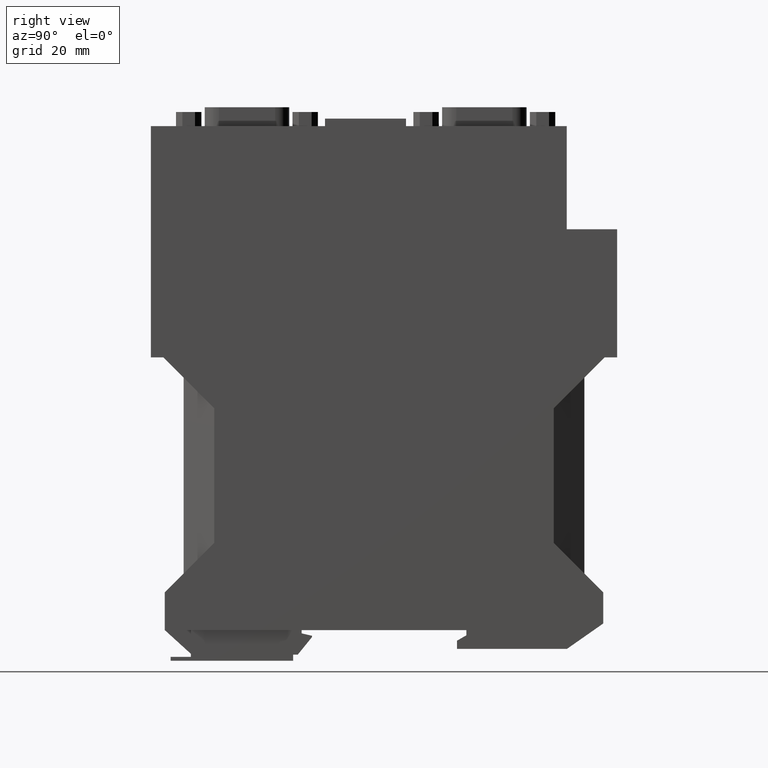
[diagram: clean part render]
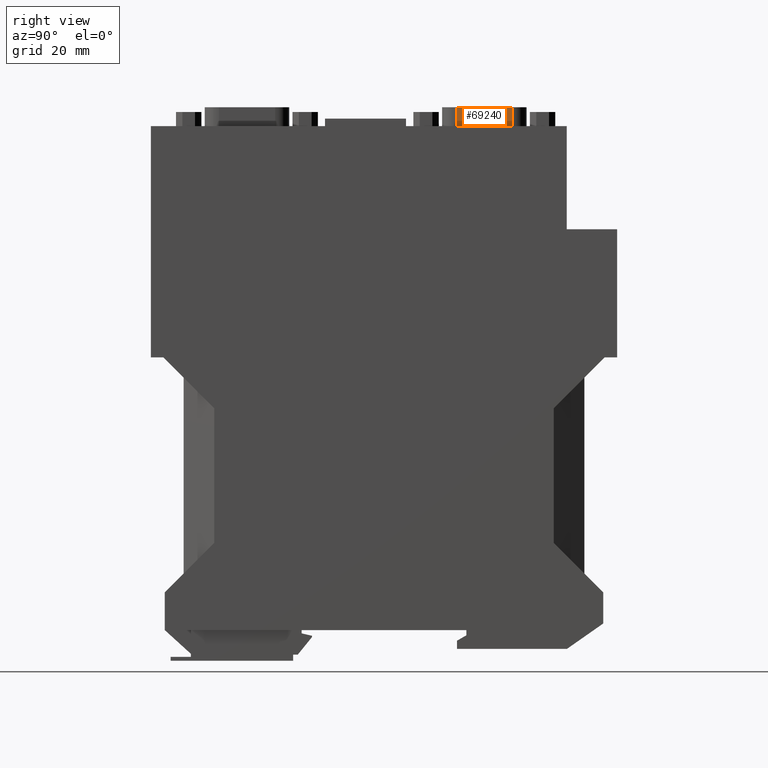
[diagram: same view with one face highlighted and labeled with its STEP entity id]
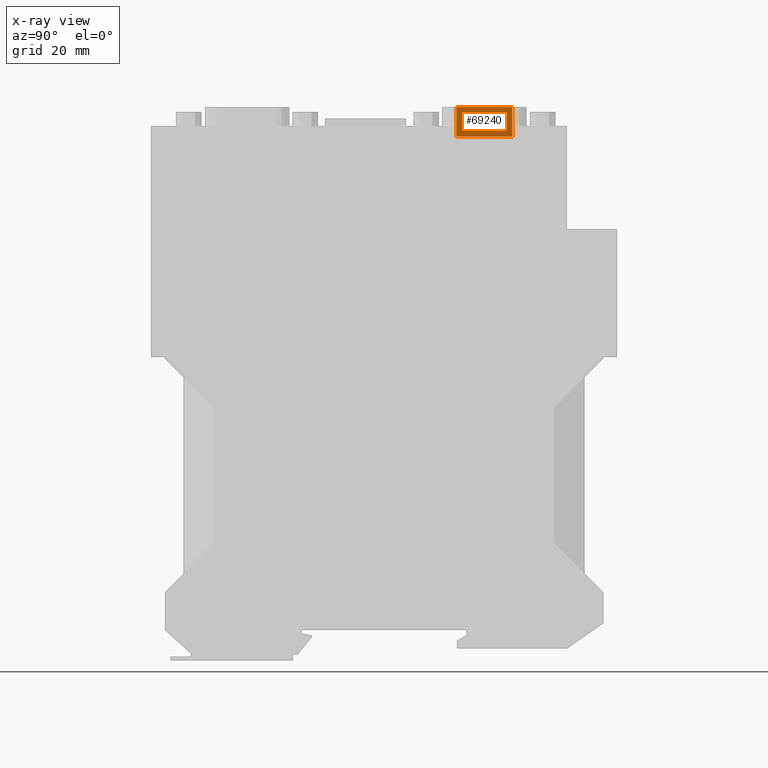
[diagram: x-ray of the same camera — body ghosted, the highlighted face saturated]
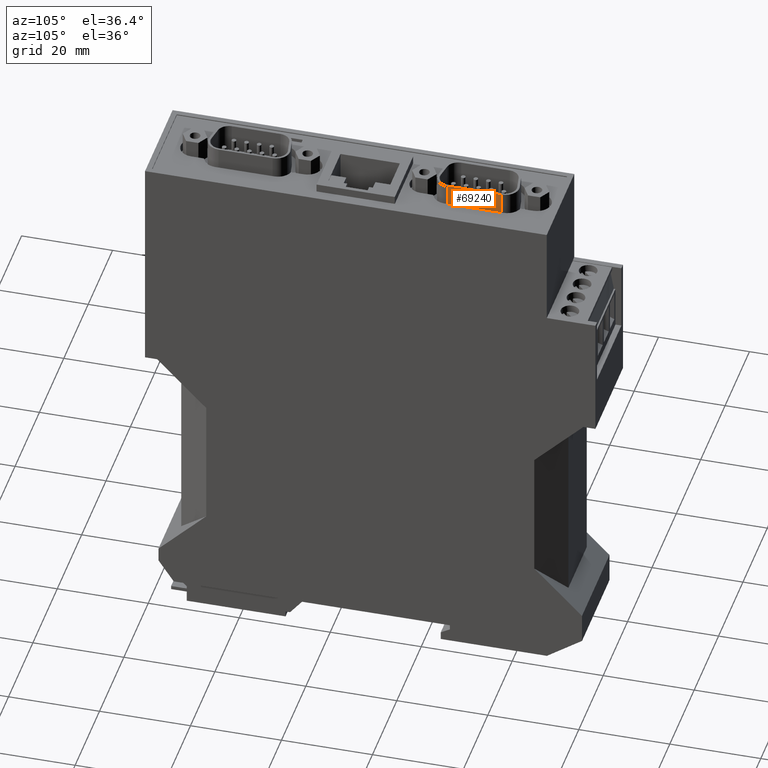
[diagram: same view with one face highlighted and labeled with its STEP entity id]
A machine part, right view. The second image highlights one B-rep face of the part: STEP entity #69240.
The next image is the same camera in x-ray: the body ghosted, the highlighted face saturated — about 0% of this face is hidden behind the body in this view.
A second angle (auxiliary view) of the same face is appended — the face is thin or edge-on in the first view.
In plain terms, the highlighted planar face has unit normal (-1, -0, 0).
Its self-contained STEP definition (entity closure, byte-faithful):
#63490=CARTESIAN_POINT('',(-2.13604813350582,104.799999999979,
16.3507559605386));
#63500=VERTEX_POINT('',#63490);
#63530=CARTESIAN_POINT('',(28.9417518810975,104.799999999957,
16.3507559605383));
#63540=DIRECTION('',(1.,-7.38964445188328E-13,-8.61887528884398E-15));
#63550=VECTOR('',#63540,1.);
#63560=LINE('',#63530,#63550);
#63570=CARTESIAN_POINT('',(9.74395186649418,104.799999999971,
16.3507559605385));
#63580=VERTEX_POINT('',#63570);
#63590=EDGE_CURVE('',#63500,#63580,#63560,.T.);
#68800=CARTESIAN_POINT('',(-2.13604813350585,110.999999999968,
16.3507559605394));
#68810=VERTEX_POINT('',#68800);
#68840=CARTESIAN_POINT('',(-2.13604813350588,117.804799999947,
16.3507559605403));
#68850=DIRECTION('',(4.90822482988215E-15,-1.,-1.2878153174413E-13));
#68860=VECTOR('',#68850,1.);
#68870=LINE('',#68840,#68860);
#68880=EDGE_CURVE('',#68810,#63500,#68870,.T.);
#69010=CARTESIAN_POINT('',(9.74395186649411,117.804799999947,
16.3507559605402));
#69020=DIRECTION('',(-8.61887528874877E-15,1.2878153174413E-13,-1.));
#69030=DIRECTION('',(1.,4.90822482988326E-15,-8.61887528874813E-15));
#69040=AXIS2_PLACEMENT_3D('',#69010,#69020,#69030);
#69050=PLANE('',#69040);
#69060=ORIENTED_EDGE('',*,*,#68880,.T.);
#69070=CARTESIAN_POINT('',(28.9417518810975,110.999999999969,
16.350755960539));
#69080=DIRECTION('',(-1.,0.,8.61887528874877E-15));
#69090=VECTOR('',#69080,1.);
#69100=LINE('',#69070,#69090);
#69110=CARTESIAN_POINT('',(9.74395186649414,110.999999999968,
16.3507559605393));
#69120=VERTEX_POINT('',#69110);
#69130=EDGE_CURVE('',#69120,#68810,#69100,.T.);
#69140=ORIENTED_EDGE('',*,*,#69130,.T.);
#69150=CARTESIAN_POINT('',(9.74395186649411,117.804799999947,
16.3507559605402));
#69160=DIRECTION('',(4.90822482988215E-15,-1.,-1.2878153174413E-13));
#69170=VECTOR('',#69160,1.);
#69180=LINE('',#69150,#69170);
#69190=EDGE_CURVE('',#69120,#63580,#69180,.T.);
#69200=ORIENTED_EDGE('',*,*,#69190,.F.);
#69210=ORIENTED_EDGE('',*,*,#63590,.T.);
#69220=EDGE_LOOP('',(#69210,#69200,#69140,#69060));
#69230=FACE_OUTER_BOUND('',#69220,.T.);
#69240=ADVANCED_FACE('',(#69230),#69050,.F.);